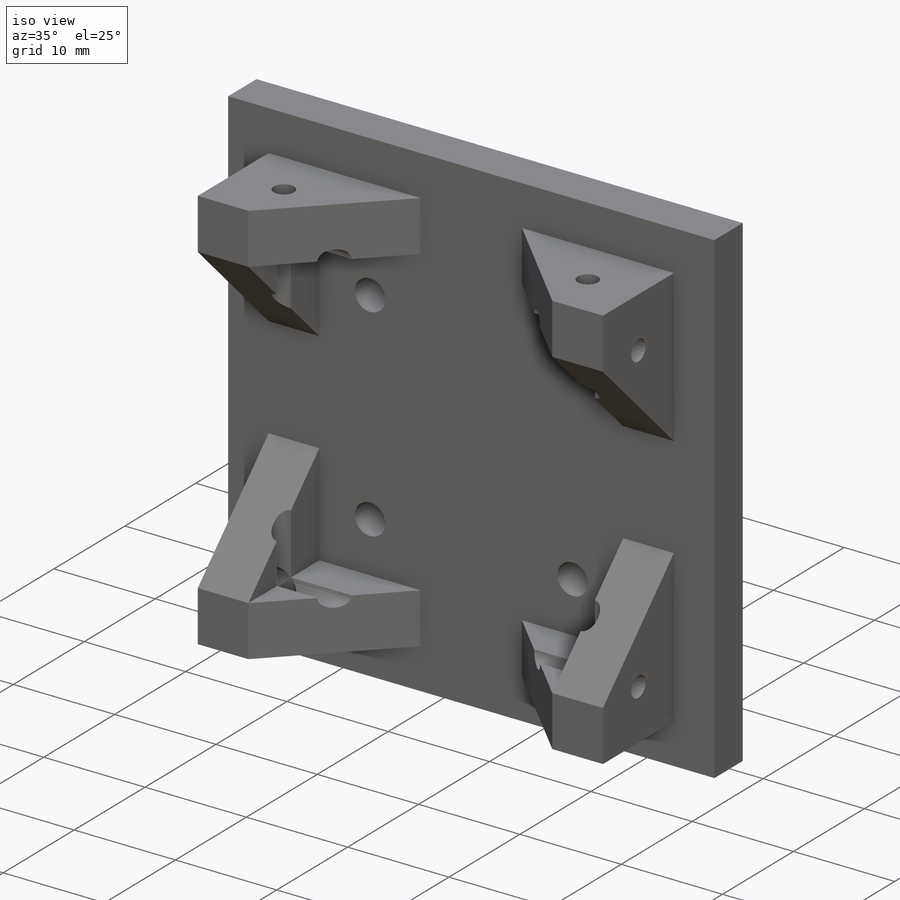
[diagram: iso view]
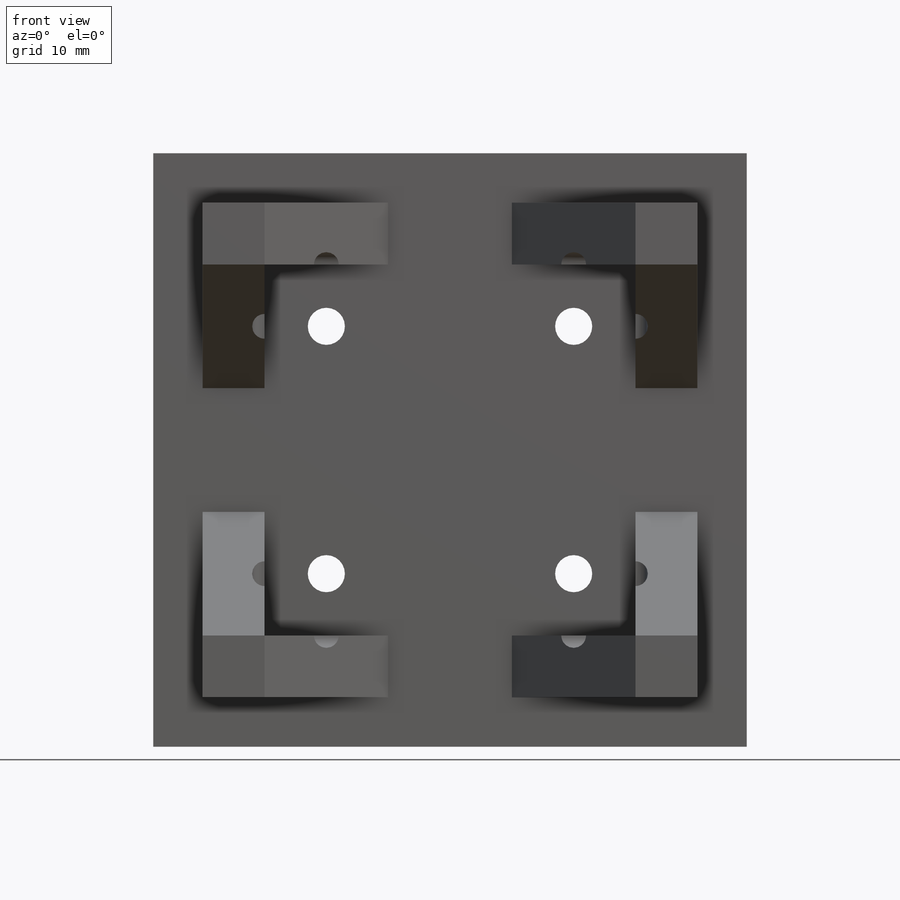
[diagram: front view]
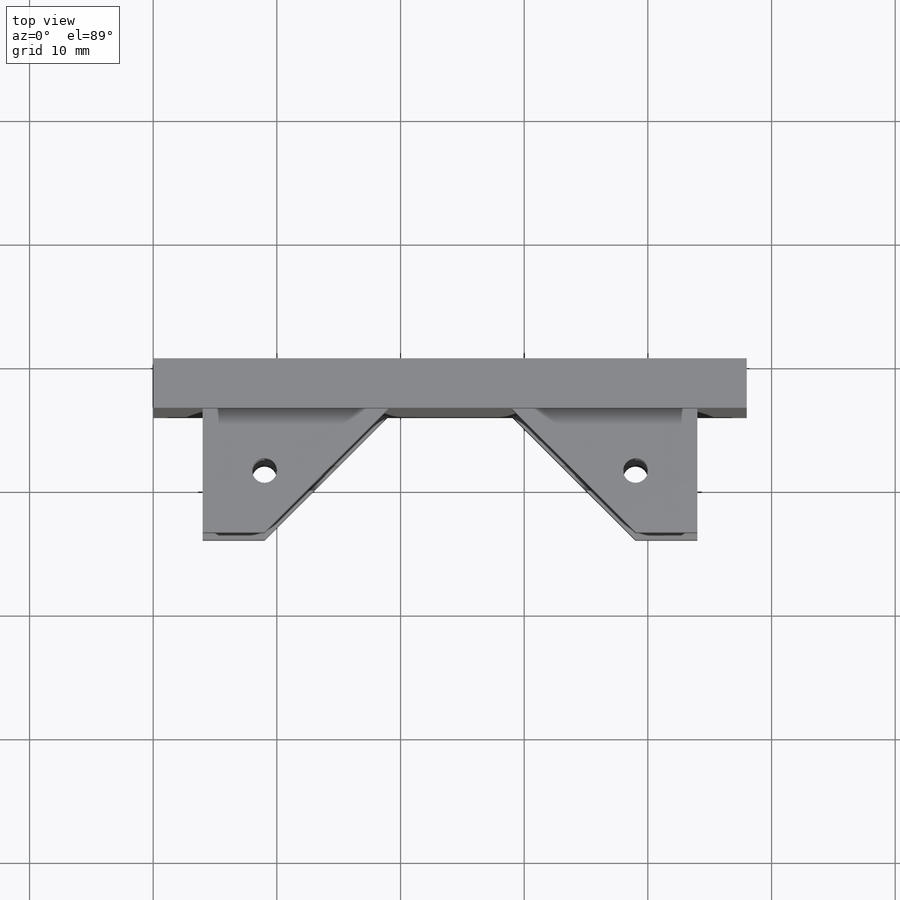
[diagram: top view]
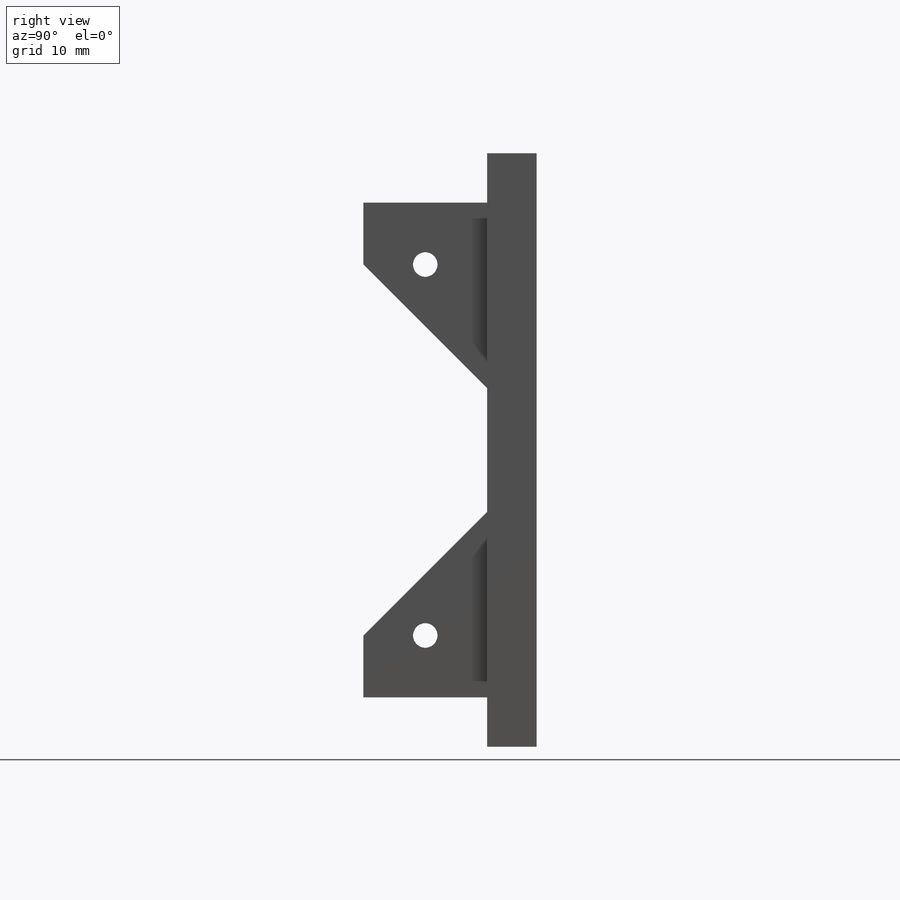
[diagram: right view]
SOLIDWORKS PART (.sldprt)
format: sldprt  version: not decoded by parser v0  size: 552,960 bytes
history: native  units: mm
features: sketch x5, plane x3, cut_extrude x3, extrude x2, material x1, chamfer x1 (+9 scaffold rows collapsed)
feature tree (24):
  scaffold x9  (default folders/planes/origin — collapsed)
  material  "Material <nicht festgelegt>"
  plane  "Ebene vorne"
  plane  "Ebene oben"
  plane  "Ebene rechts"
  sketch  "Skizze1"  dims[D1=48.0mm D2=48.0mm]
  extrude  "Aufsatz-Linear austragen1"  Depth=4mm
  sketch  "Skizze2"  dims[D1=4.0mm D2=4.0mm D3=15.0mm D4=5.0mm D5=10.0mm D6=5.0mm]
  extrude  "Aufsatz-Linear austragen3"  Depth=10mm
  chamfer  "Fase1"  Distance=10mm Angle=45deg
  sketch  "Skizze3"  dims[c1.D3=2.0mm c1.D4=2.0mm c1.D1=5.0mm c1.D2=5.0mm c1.D5=5.0mm c1.D6=~6.031702mm c2.D6=90.0deg c3.D6=5.0mm]
  cut_extrude  "Schnitt-Linear austragen1"  [1 undecoded]
  sketch  "Skizze4"  dims[D3=2.0mm D6=2.0mm D1=5.0mm D2=5.0mm D4=5.0mm D5=5.0mm]
  cut_extrude  "Schnitt-Linear austragen2"  [1 undecoded]
  sketch  "Skizze5"  dims[D4=3.0mm D1=10.0mm D2=10.0mm D3=4.0]
  cut_extrude  "Schnitt-Linear austragen3"  [1 undecoded]
decode coverage: 8 of 11 modeling features carry decoded parameters
note: ~ marks probable driven/reference dimensions
note: 3 parameter values undecoded
summary: no parameter record found for 3 features
note: suppression state not decoded; provenance and decode notes live in map.json
